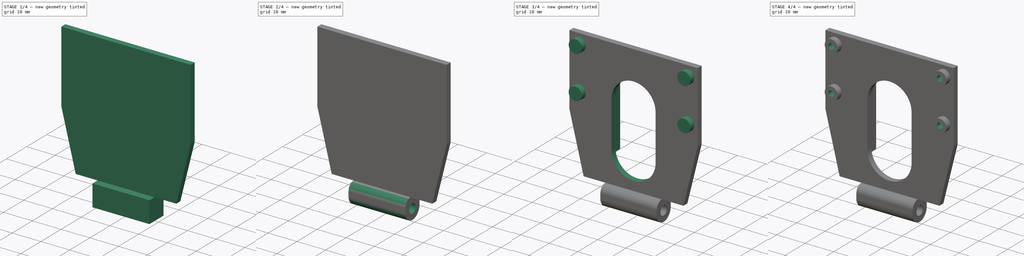
[diagram: build sequence overview — one tinted view per stage of 4, left to right]
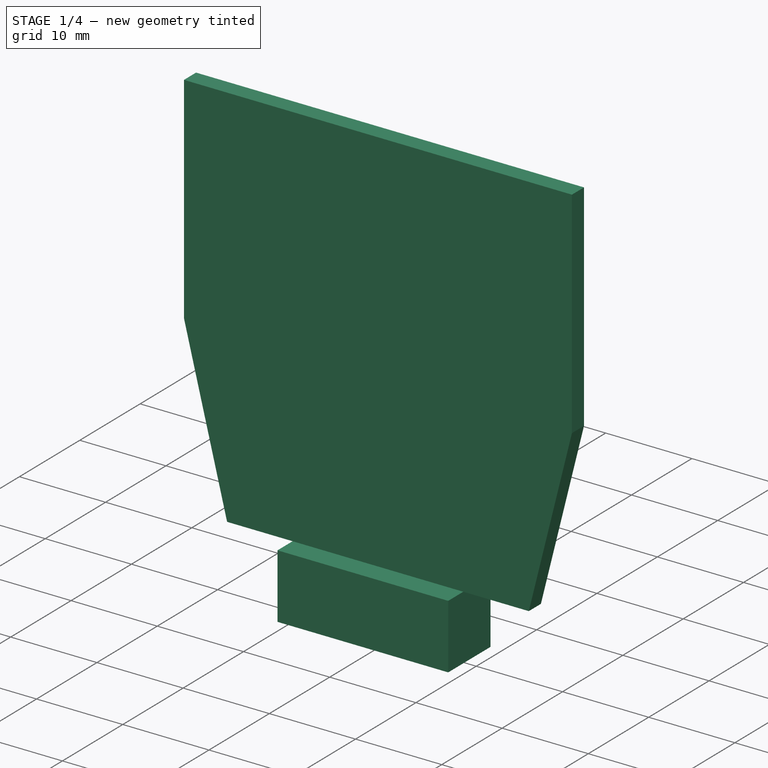
[diagram: stage 1 of 4 — iso view after this stage's code; geometry added in this stage tinted green]
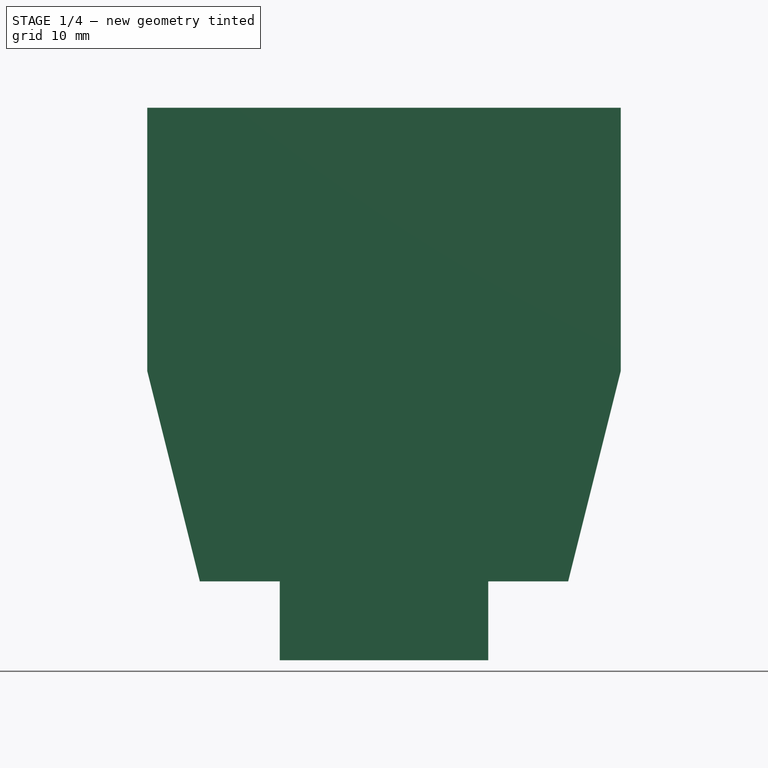
[diagram: stage 1 of 4 — front view after this stage's code; geometry added in this stage tinted green]
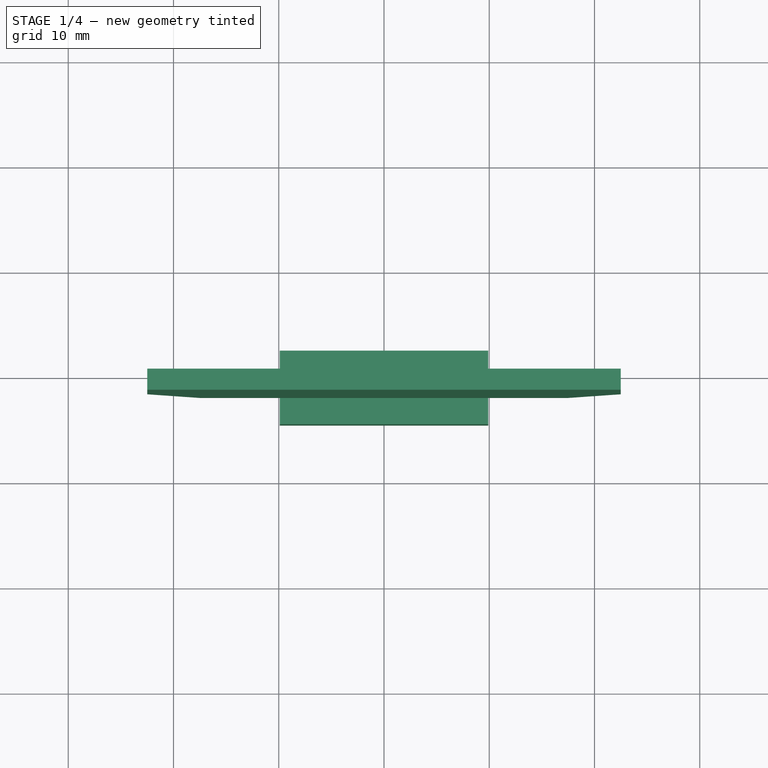
[diagram: stage 1 of 4 — top view after this stage's code; geometry added in this stage tinted green]
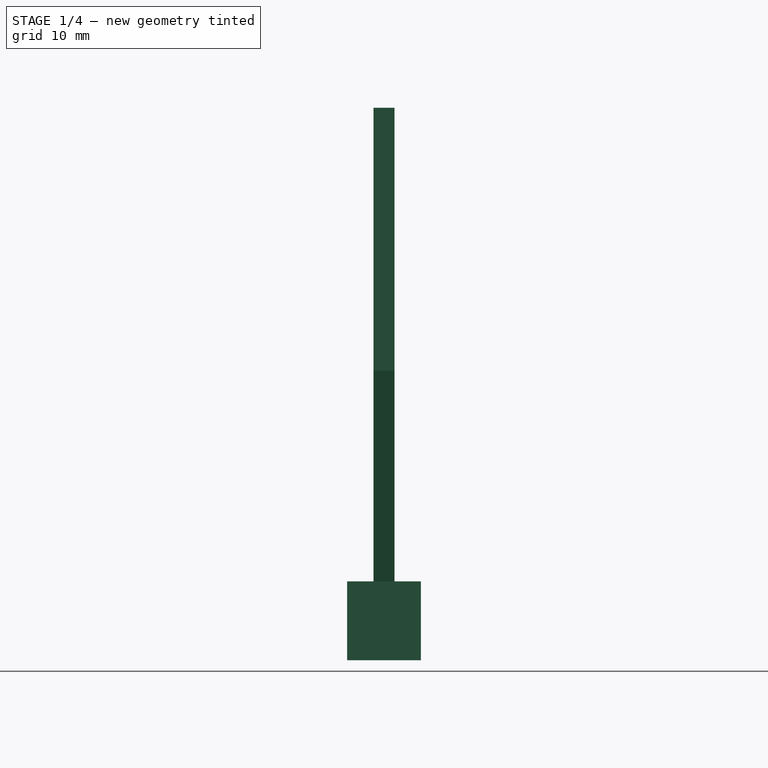
[diagram: stage 1 of 4 — right view after this stage's code; geometry added in this stage tinted green]
FCSTD DOCUMENT  (FreeCAD 0.21R33771 (Git))
Label: Haut-support_ultrasons-v1
License: All rights reserved
LicenseURL: http://en.wikipedia.org/wiki/All_rights_reserved
objects: Sketcher::SketchObject×7, PartDesign::Pad×4, PartDesign::Fillet×3, PartDesign::Pocket×3, PartDesign::Body×1
note: 28 computed .brp shape members not serialized (recipe doc carries the construction recipe); baked Part::Feature solids carry a one-line shape summary decoded from their .brp

FEATURE [Sketcher::SketchObject] Sketch
  FullyConstrained = true
  MapMode = 5
  Placement = pos=(0,0,0) rot=(1,0,0;1.5708rad)
  Support = -> [XZ_Plane]
  sketch-geometry (8):
    g0: LineSegment StartX=-17.5 StartY=0 StartZ=0 EndX=17.5 EndY=0 EndZ=0
    g1: LineSegment StartX=17.5 StartY=0 StartZ=0 EndX=22.5 EndY=20 EndZ=0
    g2: LineSegment StartX=22.5 StartY=20 StartZ=0 EndX=22.5 EndY=45 EndZ=0
    g3: LineSegment StartX=22.5 StartY=45 StartZ=0 EndX=-22.5 EndY=45 EndZ=0
    g4: LineSegment StartX=-22.5 StartY=45 StartZ=0 EndX=-22.5 EndY=20 EndZ=0
    g5: LineSegment StartX=-22.5 StartY=20 StartZ=0 EndX=-17.5 EndY=0 EndZ=0
    g6: LineSegment StartX=-22.5 StartY=45 StartZ=0 EndX=0 EndY=0 EndZ=0
    g7: LineSegment StartX=0 StartY=0 StartZ=0 EndX=22.5 EndY=45 EndZ=0
  constraints (23):
    c: PointOnObject(g0,g-1)
    c: PointOnObject(g0,g-1)
    c: Coincident(g1,g0)
    c: Coincident(g2,g1)
    c: Vertical(g2)
    c: Coincident(g3,g2)
    c: Horizontal(g3)
    c: Coincident(g4,g3)
    c: Vertical(g4)
    c: Coincident(g5,g0)
    c: Equal(g2,g4)
    c: Equal(g1,g5)
    c: PointOnObject(g5,g4)
    c: PointOnObject(g4,g5)
    c: Coincident(g6,g3)
    c: Coincident(g6,g-1)
    c: Coincident(g7,g6)
    c: Coincident(g7,g2)
    c: Equal(g7,g6)
    c: DistanceY(g2,g2) = 25
    c: DistanceX(g3,g2) = 45
    c: DistanceX(g0,g0) = 35
    c: DistanceY(g0,g2) = 45
FEATURE [PartDesign::Pad] Pad
  Direction = (0,-1,-2e-16)
  Length = 2
  Length2 = 10
  Placement = pos=(0,0,0) rot=(1,0,0;1.5708rad)
  Profile = -> Sketch
  ReferenceAxis = -> Sketch [N_Axis]
  Type = 0
FEATURE [Sketcher::SketchObject] Sketch001
  ExternalGeometry = -> [Pad]
  FullyConstrained = true
  MapMode = 5
  Placement = pos=(0,0,0) rot=(1,0,0;3.14159rad)
  Support = -> [Pad]
  sketch-geometry (7):
    g0: LineSegment StartX=-9.9 StartY=4.5 StartZ=0 EndX=9.9 EndY=4.5 EndZ=0
    g1: LineSegment StartX=9.9 StartY=4.5 StartZ=0 EndX=9.9 EndY=-2.5 EndZ=0
    g2: LineSegment StartX=9.9 StartY=-2.5 StartZ=0 EndX=-9.9 EndY=-2.5 EndZ=0
    g3: LineSegment StartX=-9.9 StartY=-2.5 StartZ=0 EndX=-9.9 EndY=4.5 EndZ=0
    g4: LineSegment StartX=-17.5 StartY=2 StartZ=0 EndX=-9.9 EndY=4.5 EndZ=0
    g5: LineSegment StartX=9.9 StartY=-2.5 StartZ=0 EndX=17.5 EndY=0 EndZ=0
    g6: LineSegment StartX=-17.5 StartY=0 StartZ=0 EndX=-9.9 EndY=-2.5 EndZ=0
  constraints (18):
    c: Coincident(g0,g1)
    c: Coincident(g1,g2)
    c: Coincident(g2,g3)
    c: Coincident(g3,g0)
    c: Horizontal(g0)
    c: Horizontal(g2)
    c: Vertical(g1)
    c: Vertical(g3)
    c: DistanceY(g1,g0) = 7
    c: DistanceX(g0,g0) = 19.8
    c: Coincident(g4,g-6)
    c: Coincident(g4,g0)
    c: Coincident(g5,g1)
    c: Coincident(g5,g-5)
    c: Equal(g5,g4)
    c: Coincident(g6,g-6)
    c: Coincident(g6,g2)
    c: Equal(g4,g6)
FEATURE [PartDesign::Pad] Pad001
  BaseFeature = -> Pad
  Direction = (0,2e-16,-1)
  Length = 7.5
  Length2 = 10
  Placement = pos=(0,0,0) rot=(1,0,0;1.5708rad)
  Profile = -> Sketch001
  ReferenceAxis = -> Sketch001 [N_Axis]
  Type = 0
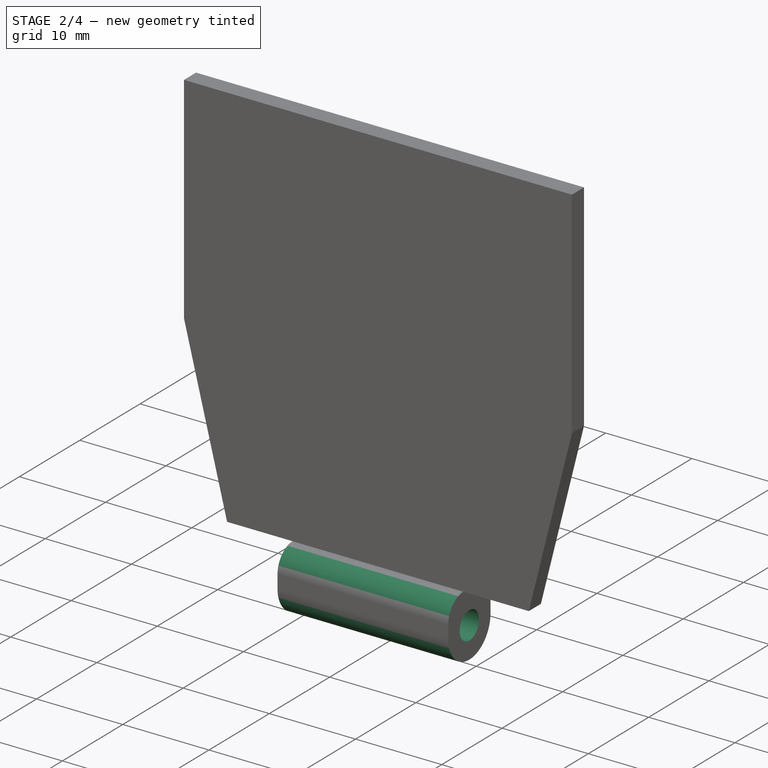
[diagram: stage 2 of 4 — iso view after this stage's code; geometry added in this stage tinted green]
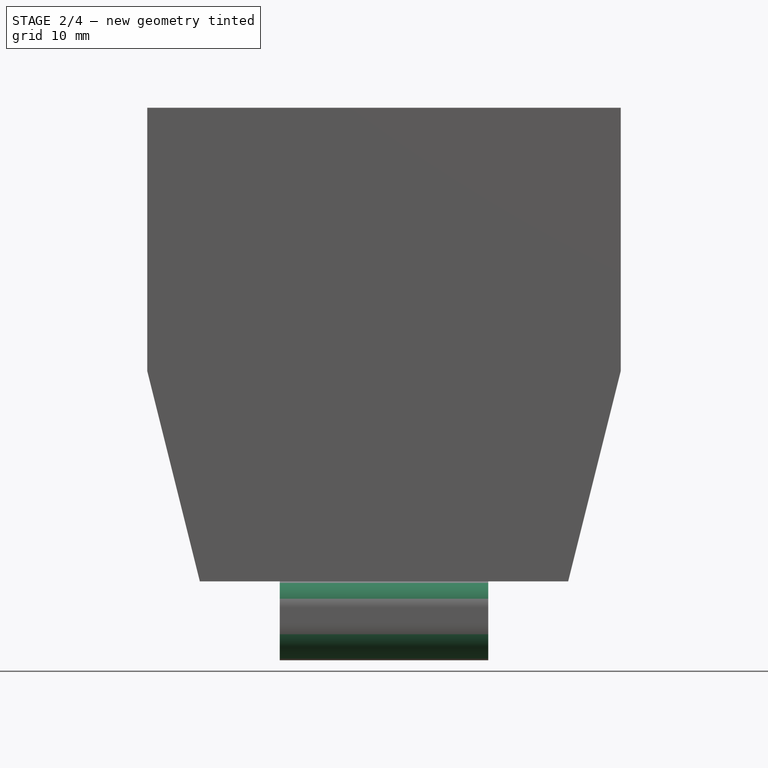
[diagram: stage 2 of 4 — front view after this stage's code; geometry added in this stage tinted green]
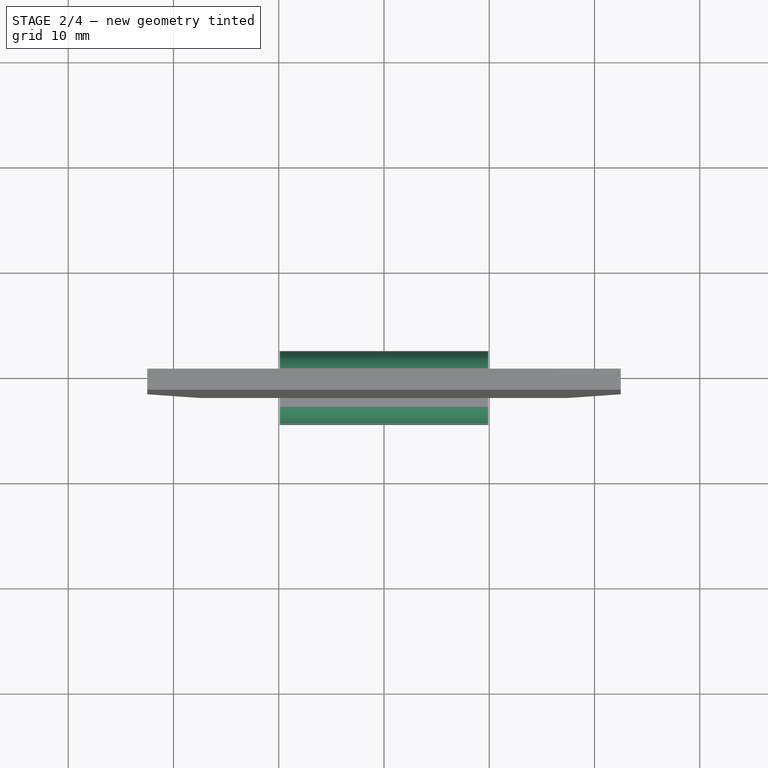
[diagram: stage 2 of 4 — top view after this stage's code; geometry added in this stage tinted green]
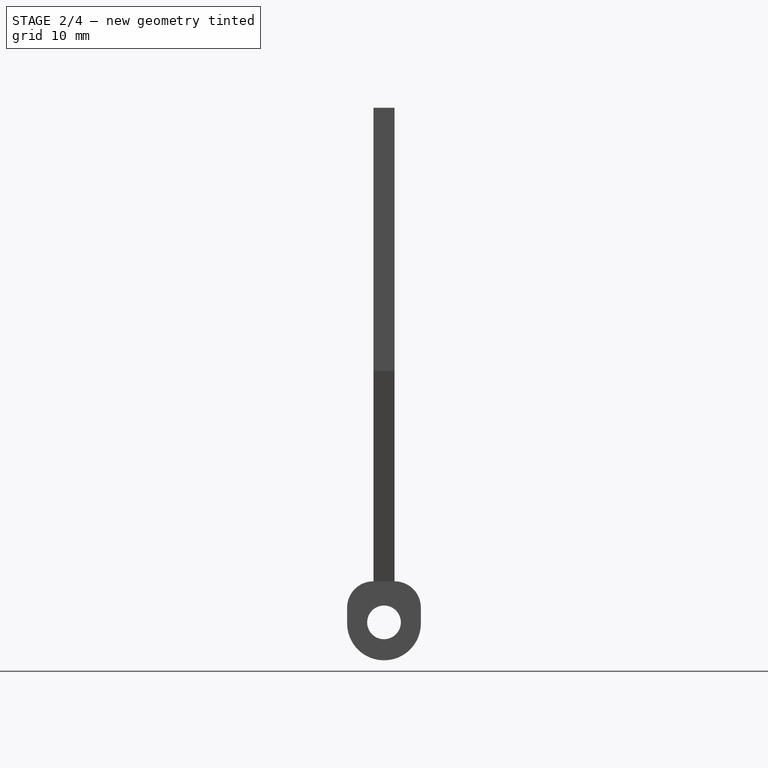
[diagram: stage 2 of 4 — right view after this stage's code; geometry added in this stage tinted green]
FEATURE [PartDesign::Fillet] Fillet
  Base = -> Pad001 [Edge36,Edge33]
  BaseFeature = -> Pad001
  Placement = pos=(0,0,0) rot=(1,0,0;1.5708rad)
  Radius = 3.49
  SupportTransform = false
  UseAllEdges = false
FEATURE [PartDesign::Fillet] Fillet001
  Base = -> Fillet [Edge25,Edge11]
  BaseFeature = -> Fillet
  Placement = pos=(0,0,0) rot=(1,0,0;1.5708rad)
  Radius = 2.49
  SupportTransform = false
  UseAllEdges = false
FEATURE [Sketcher::SketchObject] Sketch002
  ExternalGeometry = -> [Fillet001]
  FullyConstrained = true
  MapMode = 5
  Placement = pos=(-9.9,0,0) rot=(0.707107,0,-0.707107;3.14159rad)
  Support = -> [Fillet001]
  sketch-geometry (3):
    g0: Circle CenterX=3.9 CenterY=1 CenterZ=0 NormalX=0 NormalY=0 NormalZ=1 AngleXU=0 Radius=1.6
    g1: LineSegment StartX=3.9 StartY=1 StartZ=0 EndX=4.01 EndY=4.5 EndZ=0
    g2: LineSegment StartX=3.9 StartY=1 StartZ=0 EndX=4.01 EndY=-2.5 EndZ=0
  constraints (7):
    c: Coincident(g1,g0)
    c: Coincident(g1,g-3)
    c: Coincident(g2,g0)
    c: Coincident(g2,g-4)
    c: Equal(g2,g1)
    c: Diameter(g0) = 3.2
    c: DistanceX(g0,g-5) = 3.6
FEATURE [PartDesign::Pocket] Pocket
  BaseFeature = -> Fillet001
  Direction = (1,0,2e-16)
  Length = 5
  Length2 = 5
  Placement = pos=(0,0,0) rot=(1,0,0;1.5708rad)
  Profile = -> Sketch002
  ReferenceAxis = -> Sketch002 [N_Axis]
  Type = 1
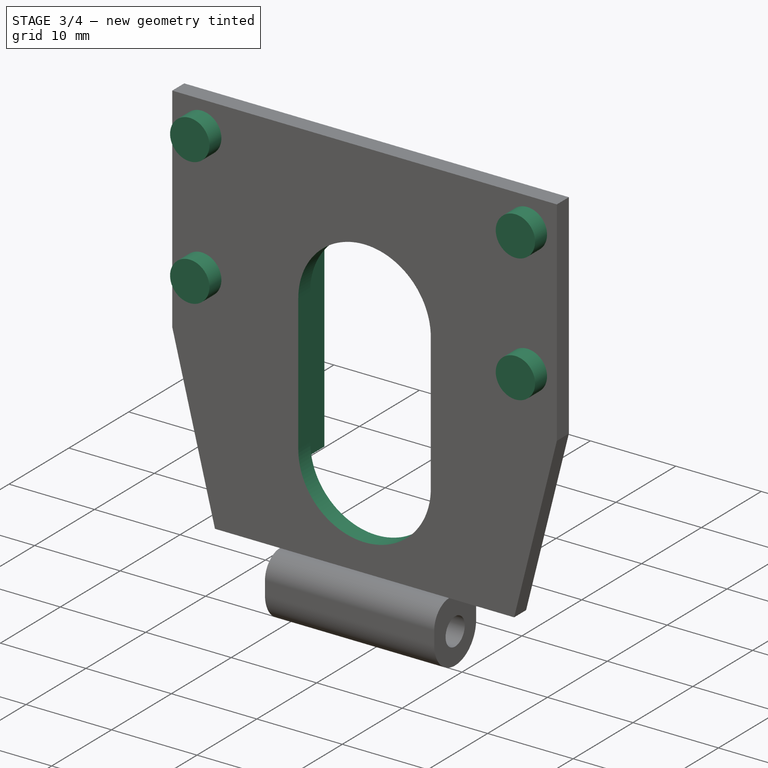
[diagram: stage 3 of 4 — iso view after this stage's code; geometry added in this stage tinted green]
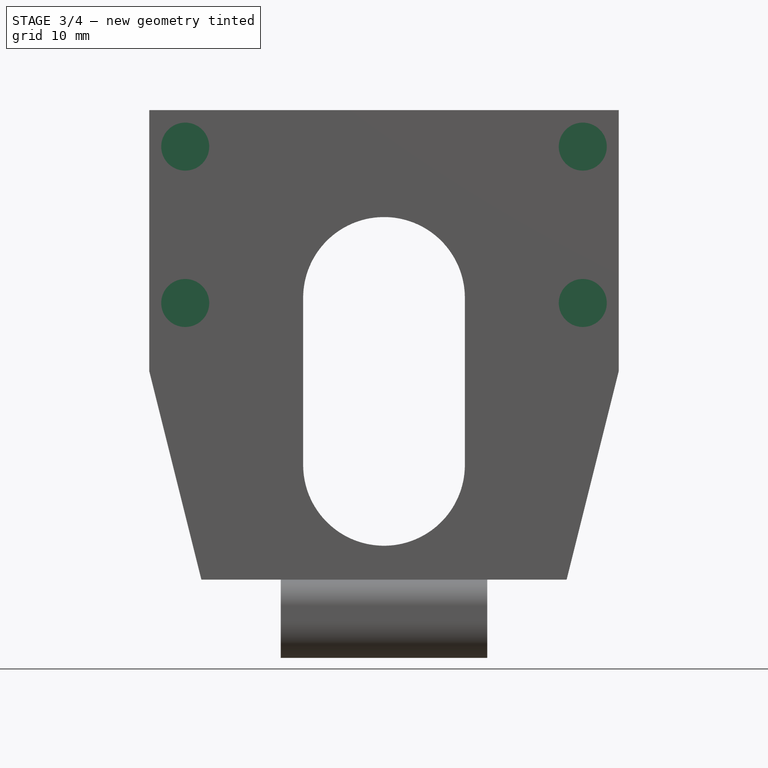
[diagram: stage 3 of 4 — front view after this stage's code; geometry added in this stage tinted green]
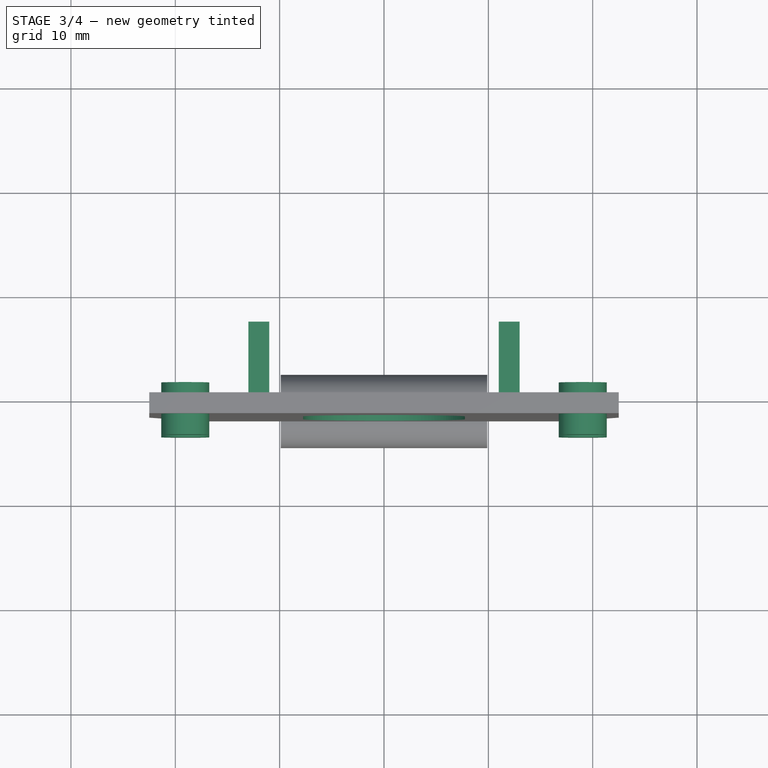
[diagram: stage 3 of 4 — top view after this stage's code; geometry added in this stage tinted green]
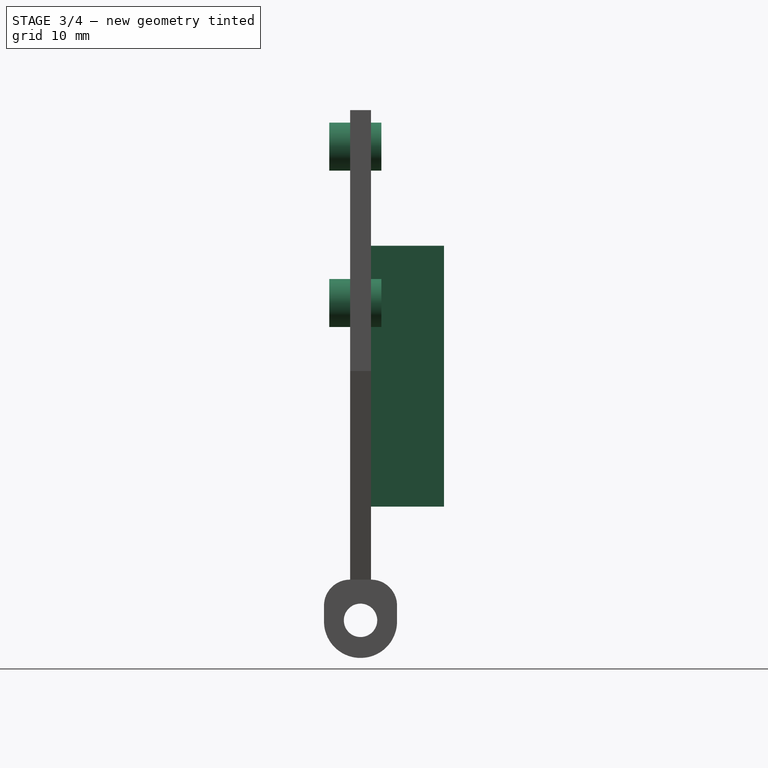
[diagram: stage 3 of 4 — right view after this stage's code; geometry added in this stage tinted green]
FEATURE [Sketcher::SketchObject] Sketch003
  ExternalGeometry = -> [Pocket]
  FullyConstrained = true
  MapMode = 5
  Placement = pos=(0,-2,0) rot=(1,0,0;1.5708rad)
  Support = -> [Pocket]
  sketch-geometry (4):
    g0: Circle CenterX=-19.05 CenterY=41.5 CenterZ=0 NormalX=0 NormalY=0 NormalZ=1 AngleXU=0 Radius=2.3
    g1: Circle CenterX=19.05 CenterY=26.514 CenterZ=0 NormalX=0 NormalY=0 NormalZ=1 AngleXU=0 Radius=2.3
    g2: Circle CenterX=-19.05 CenterY=26.514 CenterZ=0 NormalX=0 NormalY=0 NormalZ=1 AngleXU=0 Radius=2.3
    g3: Circle CenterX=19.05 CenterY=41.5 CenterZ=0 NormalX=0 NormalY=0 NormalZ=1 AngleXU=0 Radius=2.3
  constraints (12):
    c: DistanceX(g0,g1) = 38.1
    c: DistanceY(g1,g0) = 14.986
    c: DistanceX(g-1,g1) = 19.05
    c: DistanceY(g0,g-5) = 3.5
    c: Diameter(g1) = 4.6
    c: Equal(g1,g0)
    c: Horizontal(g0,g3)
    c: Horizontal(g2,g1)
    c: Vertical(g3,g1)
    c: Vertical(g2,g0)
    c: Equal(g3,g1)
    c: Equal(g0,g2)
FEATURE [PartDesign::Pad] Pad002
  BaseFeature = -> Pocket
  Direction = (0,-1,2e-16)
  Length = 2
  Length2 = 3
  Placement = pos=(0,0,0) rot=(1,0,0;1.5708rad)
  Profile = -> Sketch003
  ReferenceAxis = -> Sketch003 [N_Axis]
  Type = 4
FEATURE [Sketcher::SketchObject] Sketch005
  FullyConstrained = false
  MapMode = 5
  Placement = pos=(0,-2,2e-16) rot=(1,0,0;1.5708rad)
  sketch-geometry (4):
    g0: ArcOfCircle CenterX=0 CenterY=11 CenterZ=0 NormalX=0 NormalY=0 NormalZ=1 AngleXU=0 Radius=7.75 StartAngle=3.14159 EndAngle=6.28319
    g1: ArcOfCircle CenterX=0 CenterY=27 CenterZ=0 NormalX=0 NormalY=0 NormalZ=1 AngleXU=0 Radius=7.75 StartAngle=1e-16 EndAngle=3.14159
    g2: LineSegment StartX=7.75 StartY=11 StartZ=0 EndX=7.75 EndY=27 EndZ=0
    g3: LineSegment StartX=-7.75 StartY=27 StartZ=0 EndX=-7.75 EndY=11 EndZ=0
  constraints (8):
    c: Tangent(g0,g2) = -1.5708
    c: Tangent(g2,g1) = -1.5708
    c: Tangent(g1,g3) = -1.5708
    c: Tangent(g3,g0) = -1.5708
    c: Equal(g0,g1)
    c: PointOnObject(g0,g-2)
    c: PointOnObject(g1,g-2)
    c: DistanceX(g0,g0) = 15.5
FEATURE [PartDesign::Pocket] Pocket002
  BaseFeature = -> Pad002
  Direction = (0,1,-2e-16)
  Length = 5
  Length2 = 5
  Placement = pos=(0,0,0) rot=(1,0,0;1.5708rad)
  Profile = -> Sketch005
  ReferenceAxis = -> Sketch005 [N_Axis]
  Type = 0
FEATURE [Sketcher::SketchObject] Sketch006
  FullyConstrained = true
  MapMode = 5
  Placement = pos=(0,-1e-16,0) rot=(-1,0,0;1.5708rad)
  Support = -> [Pocket002]
  sketch-geometry (8):
    g0: LineSegment StartX=-13 StartY=-7 StartZ=0 EndX=-11 EndY=-7 EndZ=0
    g1: LineSegment StartX=-11 StartY=-7 StartZ=0 EndX=-11 EndY=-32 EndZ=0
    g2: LineSegment StartX=-11 StartY=-32 StartZ=0 EndX=-13 EndY=-32 EndZ=0
    g3: LineSegment StartX=-13 StartY=-32 StartZ=0 EndX=-13 EndY=-7 EndZ=0
    g4: LineSegment StartX=11 StartY=-7 StartZ=0 EndX=13 EndY=-7 EndZ=0
    g5: LineSegment StartX=13 StartY=-7 StartZ=0 EndX=13 EndY=-32 EndZ=0
    g6: LineSegment StartX=13 StartY=-32 StartZ=0 EndX=11 EndY=-32 EndZ=0
    g7: LineSegment StartX=11 StartY=-32 StartZ=0 EndX=11 EndY=-7 EndZ=0
  constraints (24):
    c: Coincident(g0,g1)
    c: Coincident(g1,g2)
    c: Coincident(g2,g3)
    c: Coincident(g3,g0)
    c: Horizontal(g0)
    c: Horizontal(g2)
    c: Vertical(g1)
    c: Vertical(g3)
    c: Coincident(g4,g5)
    c: Coincident(g5,g6)
    c: Coincident(g6,g7)
    c: Coincident(g7,g4)
    c: Horizontal(g4)
    c: Horizontal(g6)
    c: Vertical(g5)
    c: Vertical(g7)
    c: Equal(g7,g1)
    c: Equal(g0,g4)
    c: DistanceX(g1,g6) = 22
    c: DistanceX(g6,g6) = 2
    c: DistanceY(g5,g5) = 25
    c: DistanceX(g0,g-1) = 11
    c: DistanceY(g4,g-1) = 7
    c: DistanceY(g0,g-1) = 7
FEATURE [PartDesign::Pad] Pad003
  BaseFeature = -> Pocket002
  Direction = (0,1,-2e-16)
  Length = 7
  Length2 = 10
  Placement = pos=(0,0,0) rot=(1,0,0;1.5708rad)
  Profile = -> Sketch006
  ReferenceAxis = -> Sketch006 [N_Axis]
  Type = 0
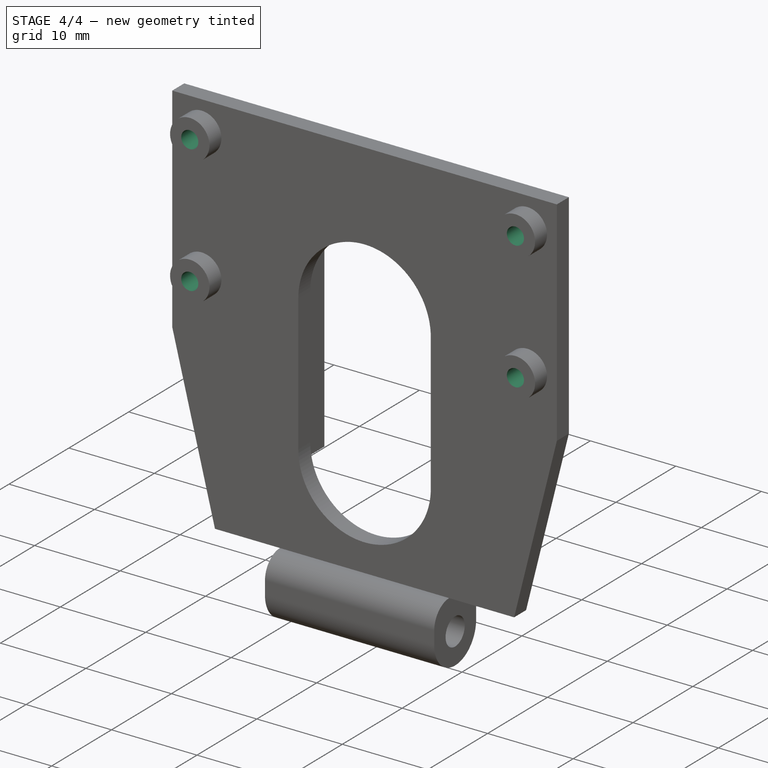
[diagram: stage 4 of 4 — iso view after this stage's code; geometry added in this stage tinted green]
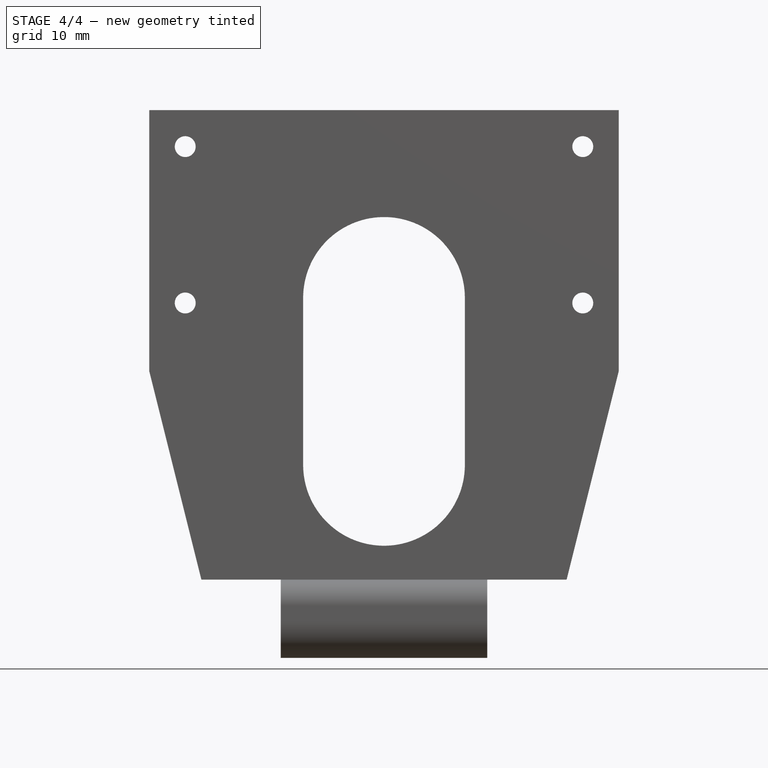
[diagram: stage 4 of 4 — front view after this stage's code; geometry added in this stage tinted green]
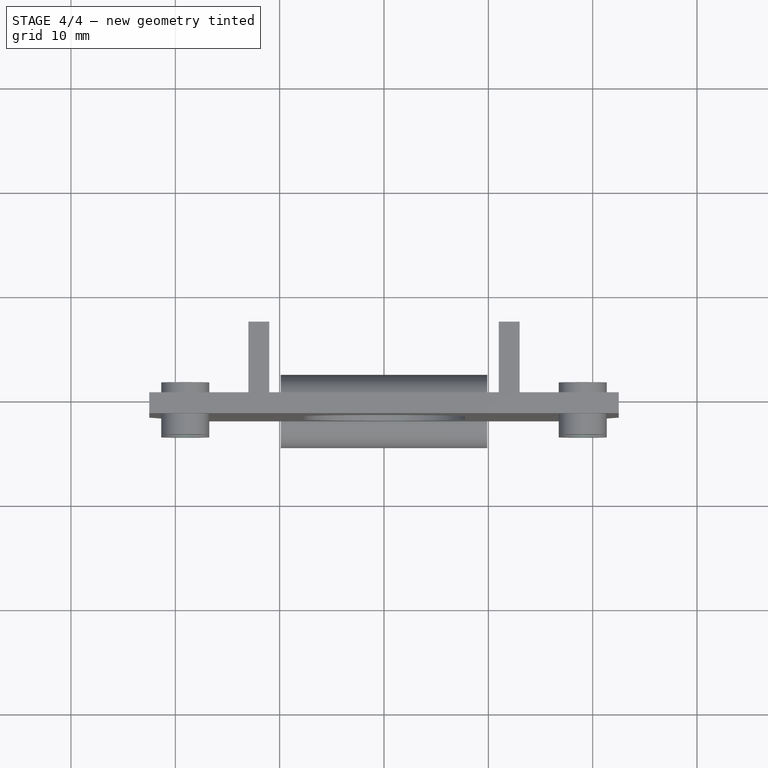
[diagram: stage 4 of 4 — top view after this stage's code; geometry added in this stage tinted green]
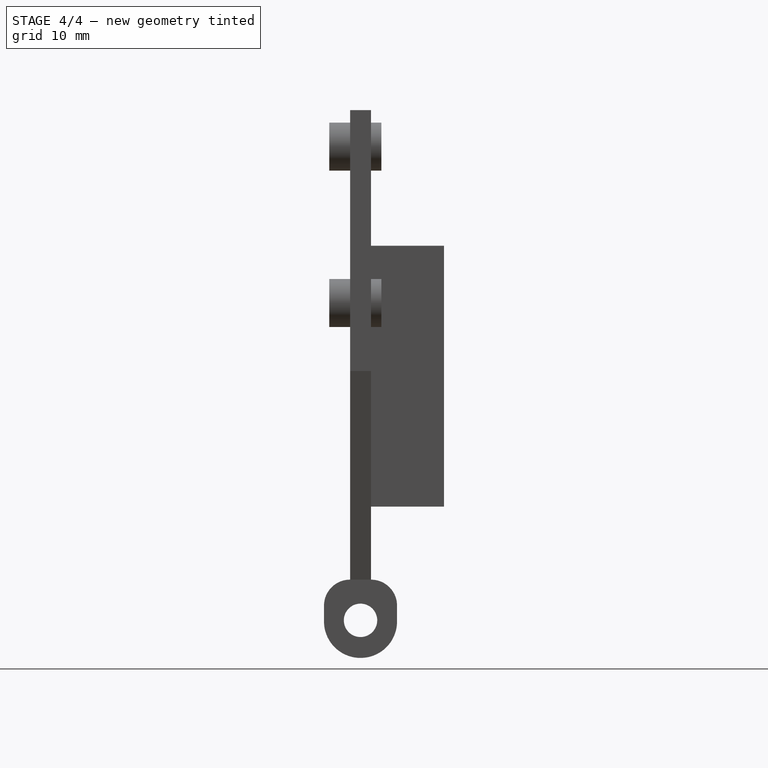
[diagram: stage 4 of 4 — right view after this stage's code; geometry added in this stage tinted green]
FEATURE [PartDesign::Fillet] Fillet003
  Base = -> Pad003
  BaseFeature = -> Pad003
  Placement = pos=(0,0,0) rot=(1,0,0;1.5708rad)
  Radius = 3
  SupportTransform = false
  UseAllEdges = false
FEATURE [Sketcher::SketchObject] Sketch007
  ExternalGeometry = -> [Fillet003]
  FullyConstrained = true
  MapMode = 5
  Placement = pos=(0,-4,2.2e-15) rot=(1,0,0;1.5708rad)
  Support = -> [Fillet003]
  sketch-geometry (4):
    g0: Circle CenterX=-19.05 CenterY=41.5 CenterZ=0 NormalX=0 NormalY=0 NormalZ=1 AngleXU=0 Radius=1
    g1: Circle CenterX=-19.05 CenterY=26.514 CenterZ=0 NormalX=0 NormalY=0 NormalZ=1 AngleXU=0 Radius=1
    g2: Circle CenterX=19.05 CenterY=26.514 CenterZ=0 NormalX=0 NormalY=0 NormalZ=1 AngleXU=0 Radius=1
    g3: Circle CenterX=19.05 CenterY=41.5 CenterZ=0 NormalX=0 NormalY=0 NormalZ=1 AngleXU=0 Radius=1
  constraints (8):
    c: Coincident(g0,g-3)
    c: Coincident(g1,g-4)
    c: Coincident(g2,g-5)
    c: Coincident(g3,g-6)
    c: Equal(g3,g2)
    c: Equal(g2,g1)
    c: Equal(g1,g0)
    c: Diameter(g3) = 2
FEATURE [PartDesign::Pocket] Pocket003
  BaseFeature = -> Fillet003
  Direction = (0,1,-4e-16)
  Length = 5
  Length2 = 5
  Placement = pos=(0,0,0) rot=(1,0,0;1.5708rad)
  Profile = -> Sketch007
  ReferenceAxis = -> Sketch007 [N_Axis]
  Type = 0
FEATURE [PartDesign::Body] Body  label="haut-support-ultrasons"
  Group = -> [Sketch,Pad,Sketch001,Pad001,Fillet,Fillet001,Sketch002,Pocket,Sketch003,Pad002,Sketch005,Pocket002,Sketch006,Pad003,Fillet003,Sketch007,Pocket003]
  Origin = -> Origin
  Tip = -> Pocket003
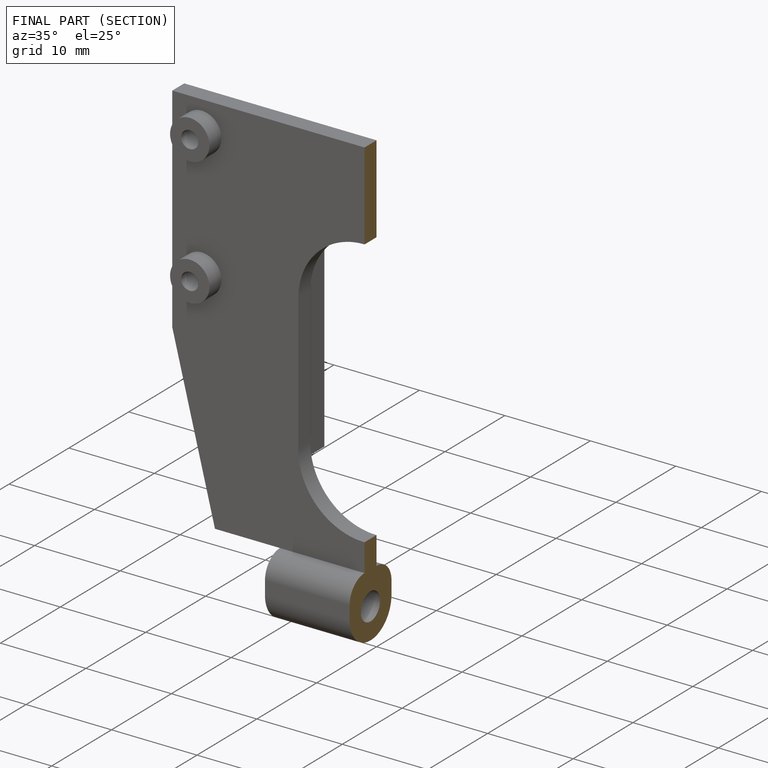
[diagram: finished part — half-section view (interior)]
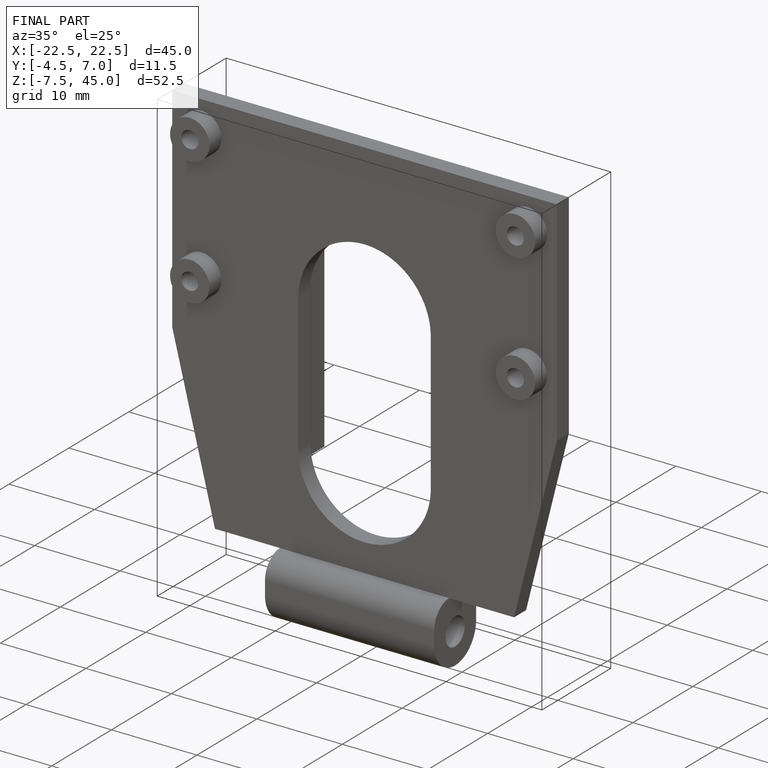
[diagram: finished part — iso view with bounding-box wireframe]
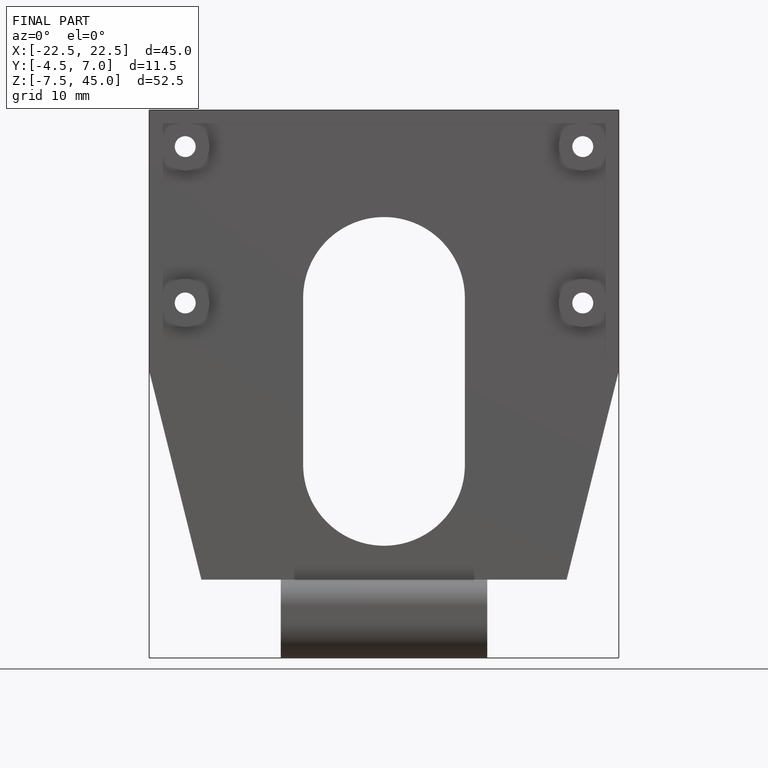
[diagram: finished part — front view with bounding-box wireframe]
